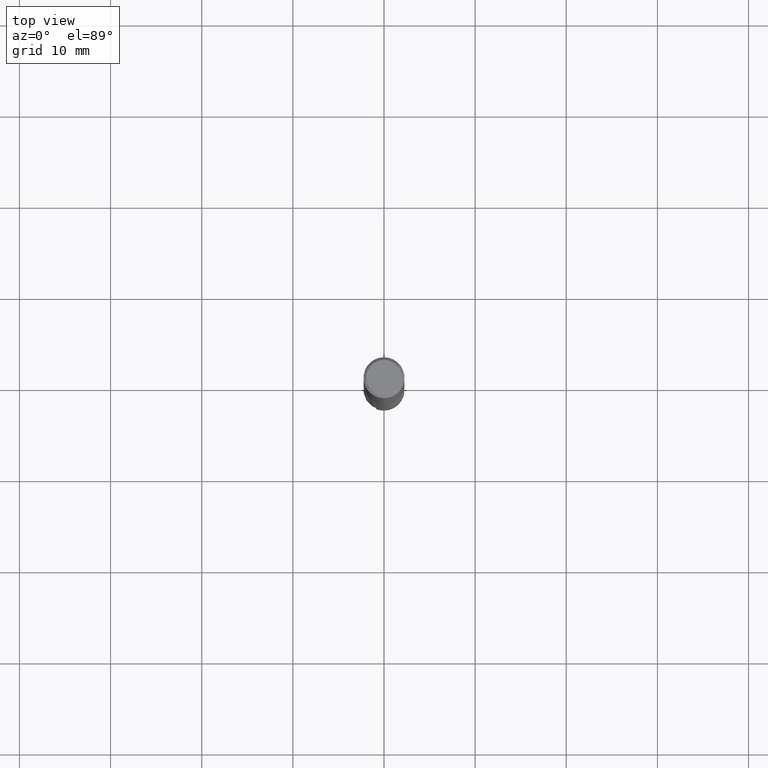
[diagram: clean part render]
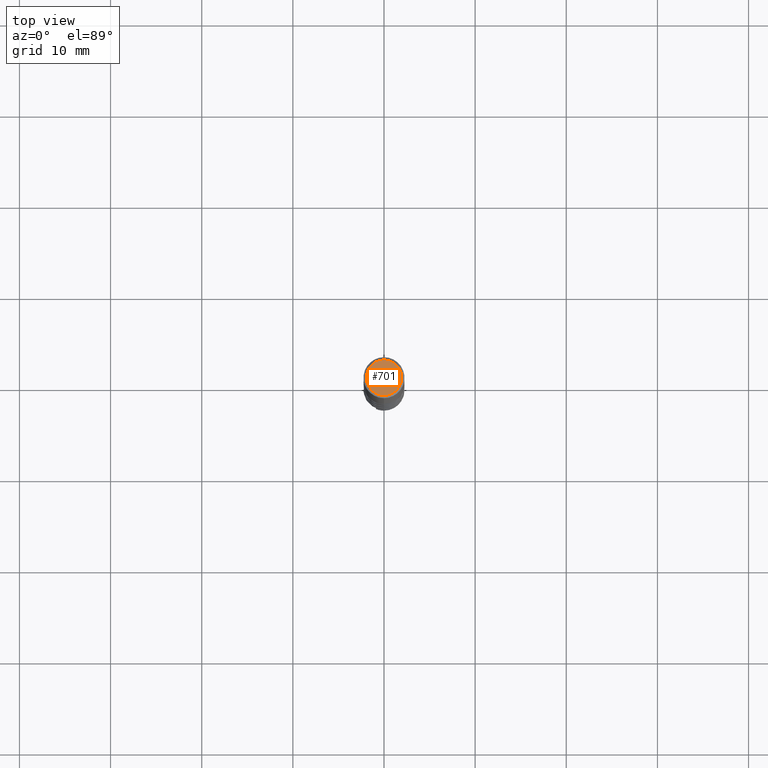
[diagram: same view with one face highlighted and labeled with its STEP entity id]
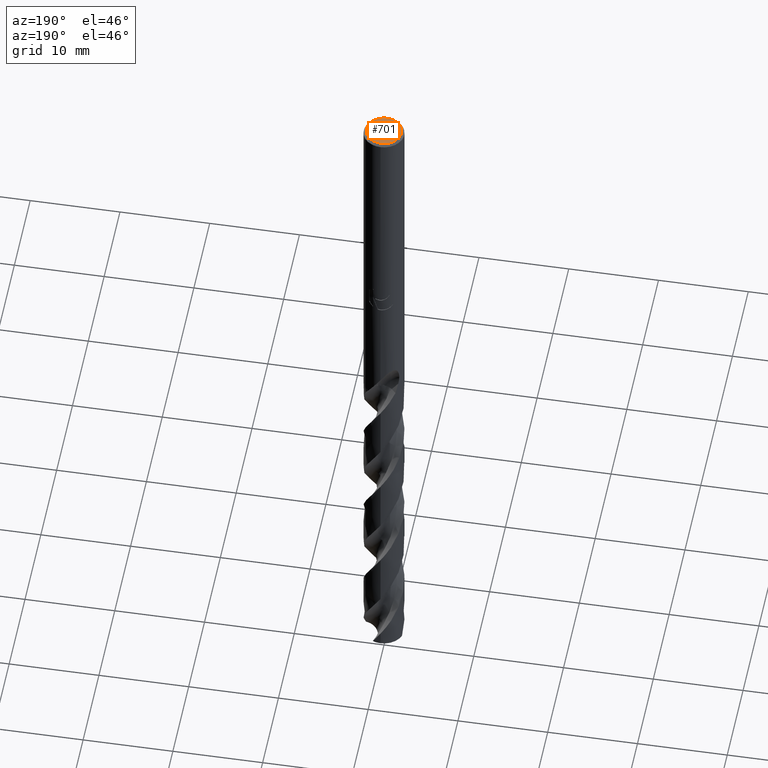
[diagram: same view with one face highlighted and labeled with its STEP entity id]
A machine part, top view. The second image highlights one B-rep face of the part: STEP entity #701.
A second angle (auxiliary view) of the same face is appended — the face is thin or edge-on in the first view.
In plain terms, the highlighted planar face has unit normal (-0, 0, 1).
Its self-contained STEP definition (entity closure, byte-faithful):
#407=EDGE_CURVE('',#711,#513,#919,.T.);
#513=VERTEX_POINT('',#1036);
#679=EDGE_CURVE('',#513,#711,#1214,.T.);
#701=ADVANCED_FACE('',(#1238),#1239,.T.);
#711=VERTEX_POINT('',#1250);
#919=CIRCLE('',#3721,1.95);
#1036=CARTESIAN_POINT('',(2.38798238995364E-016,-1.95,0.0));
#1214=CIRCLE('',#7227,1.95);
#1238=FACE_OUTER_BOUND('',#7604,.T.);
#1239=PLANE('',#7605);
#1250=CARTESIAN_POINT('',(0.0,1.95,0.0));
#3721=AXIS2_PLACEMENT_3D('',#8180,#8181,#8182);
#7227=AXIS2_PLACEMENT_3D('',#8468,#8469,#8470);
#7604=EDGE_LOOP('',(#8491,#8492));
#7605=AXIS2_PLACEMENT_3D('',#8493,#8494,#8495);
#8180=CARTESIAN_POINT('',(0.0,0.0,0.0));
#8181=DIRECTION('',(0.0,0.0,-1.0));
#8182=DIRECTION('',(0.0,1.0,0.0));
#8468=CARTESIAN_POINT('',(0.0,0.0,0.0));
#8469=DIRECTION('',(0.0,0.0,-1.0));
#8470=DIRECTION('',(0.0,1.0,0.0));
#8491=ORIENTED_EDGE('',*,*,#407,.F.);
#8492=ORIENTED_EDGE('',*,*,#679,.F.);
#8493=CARTESIAN_POINT('',(0.0,0.975,0.0));
#8494=DIRECTION('',(-0.0,0.0,1.0));
#8495=DIRECTION('',(0.0,-1.0,0.0));